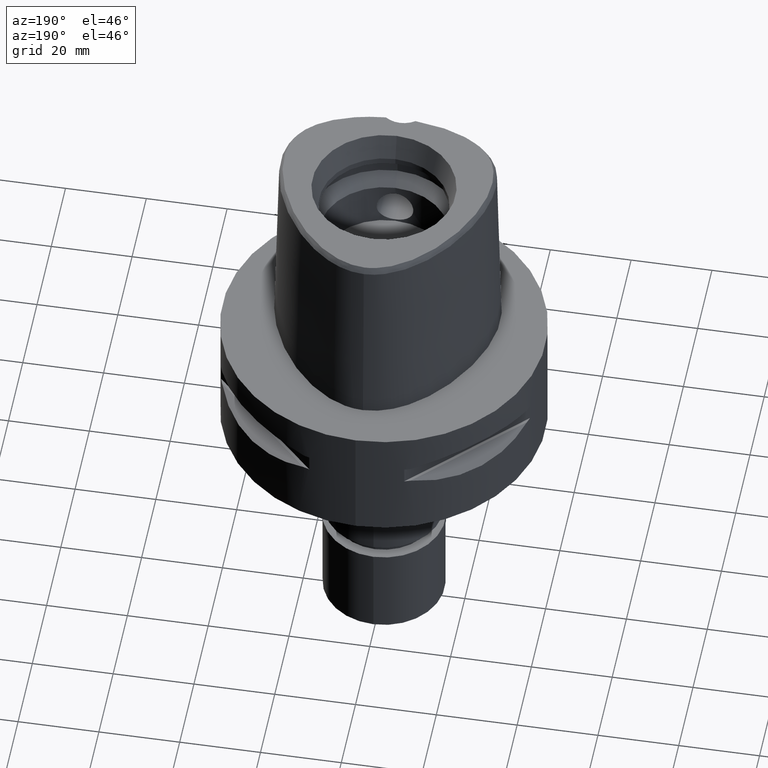
[diagram: clean part render]
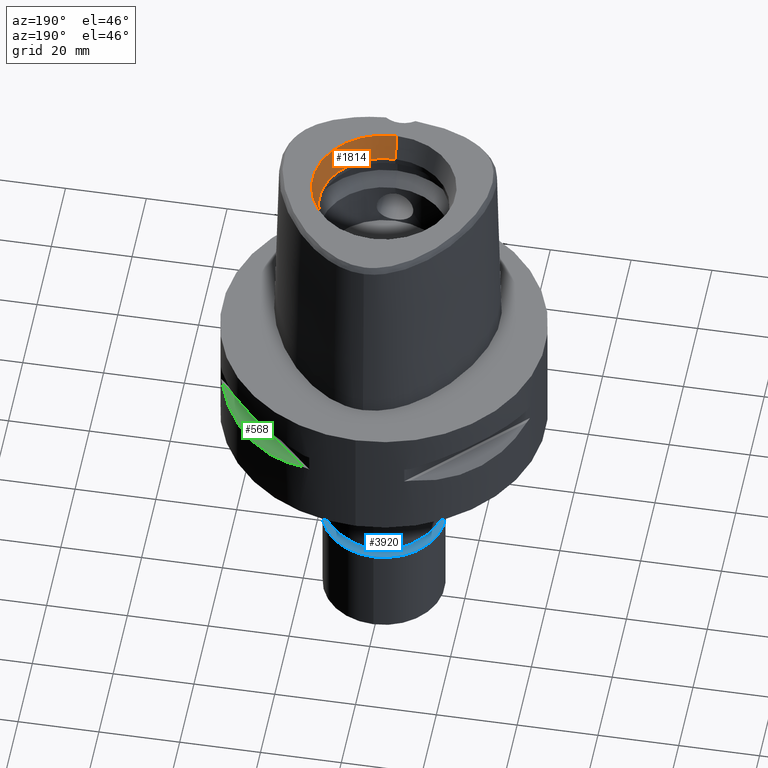
[diagram: same view with three faces highlighted in distinct colors, each labeled with its STEP entity id]
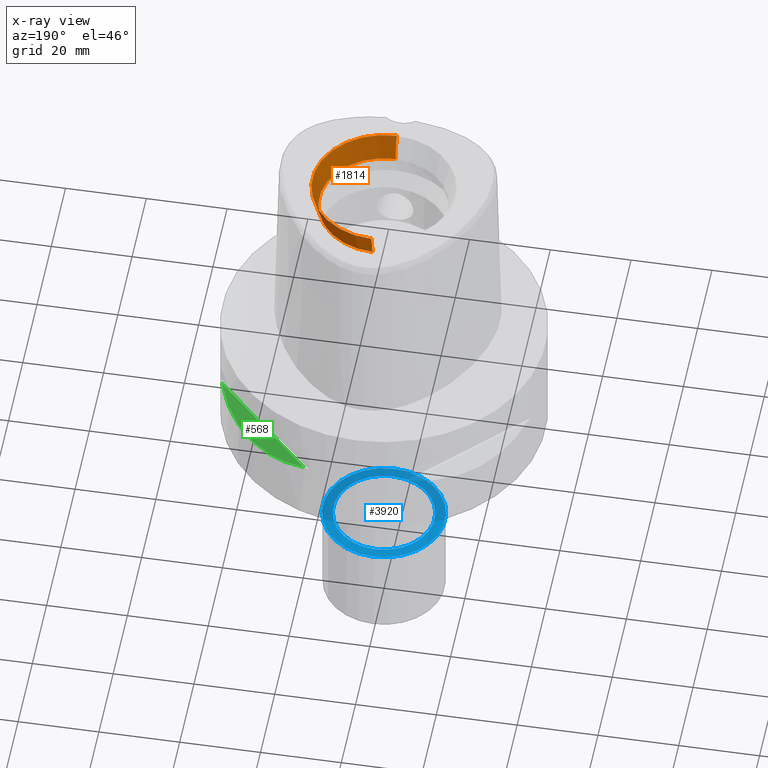
[diagram: x-ray of the same camera — body ghosted, the three highlighted faces saturated]
A machine part, auxiliary view with three faces highlighted in distinct colors.
The next image is the same camera in x-ray (body ghosted, the three faces saturated) — at least one of them is partly hidden behind the body in this view.
Their STEP definitions:

[orange] entity #1814 — the highlighted conical surface has half-angle 15 deg.
#455 = CIRCLE ( 'NONE', #4609, 17.71487483155999954 ) ;
#788 = CIRCLE ( 'NONE', #1198, 16.00000000000000000 ) ;
#854 = DIRECTION ( 'NONE',  ( 0.0000000000000000000, 0.0000000000000000000, 1.000000000000000000 ) ) ;
#870 = CARTESIAN_POINT ( 'NONE',  ( 0.0000000000000000000, 0.0000000000000000000, 41.60000000000000142 ) ) ;
#873 = EDGE_LOOP ( 'NONE', ( #4148, #3035, #1162, #4160 ) ) ;
#879 = CARTESIAN_POINT ( 'NONE',  ( 0.0000000000000000000, 0.0000000000000000000, 44.79999999999999716 ) ) ;
#911 = CARTESIAN_POINT ( 'NONE',  ( 0.0000000000000000000, 16.00000000000000000, 41.60000000000000142 ) ) ;
#1130 = CARTESIAN_POINT ( 'NONE',  ( 0.0000000000000000000, 0.0000000000000000000, 48.00000000000000000 ) ) ;
#1145 = VERTEX_POINT ( 'NONE', #1637 ) ;
#1162 = ORIENTED_EDGE ( 'NONE', *, *, #1213, .T. ) ;
#1198 = AXIS2_PLACEMENT_3D ( 'NONE', #870, #3451, #4229 ) ;
#1213 = EDGE_CURVE ( 'NONE', #2285, #1762, #2142, .T. ) ;
#1350 = CARTESIAN_POINT ( 'NONE',  ( 0.0000000000000000000, -16.00000000000000000, 41.60000000000000142 ) ) ;
#1487 = EDGE_CURVE ( 'NONE', #4542, #1145, #1645, .T. ) ;
#1637 = CARTESIAN_POINT ( 'NONE',  ( 0.0000000000000000000, 17.71487483155999954, 48.00000000000000000 ) ) ;
#1645 = LINE ( 'NONE', #911, #4912 ) ;
#1677 = VECTOR ( 'NONE', #3323, 1000.000000000000000 ) ;
#1762 = VERTEX_POINT ( 'NONE', #3582 ) ;
#1814 = ADVANCED_FACE ( 'NONE', ( #2824 ), #5000, .F. ) ;
#1852 = DIRECTION ( 'NONE',  ( 0.0000000000000000000, -1.000000000000000000, 0.0000000000000000000 ) ) ;
#1951 = DIRECTION ( 'NONE',  ( 0.0000000000000000000, 0.0000000000000000000, 1.000000000000000000 ) ) ;
#2088 = AXIS2_PLACEMENT_3D ( 'NONE', #879, #854, #4015 ) ;
#2142 = LINE ( 'NONE', #2942, #1677 ) ;
#2285 = VERTEX_POINT ( 'NONE', #1350 ) ;
#2411 = EDGE_CURVE ( 'NONE', #1762, #1145, #455, .T. ) ;
#2741 = EDGE_CURVE ( 'NONE', #2285, #4542, #788, .T. ) ;
#2824 = FACE_OUTER_BOUND ( 'NONE', #873, .T. ) ;
#2942 = CARTESIAN_POINT ( 'NONE',  ( 0.0000000000000000000, -16.00000000000000000, 41.60000000000000142 ) ) ;
#3035 = ORIENTED_EDGE ( 'NONE', *, *, #2741, .F. ) ;
#3235 = DIRECTION ( 'NONE',  ( 0.0000000000000000000, 0.2588190451025869088, 0.9659258262890505486 ) ) ;
#3323 = DIRECTION ( 'NONE',  ( 0.0000000000000000000, -0.2588190451025869088, 0.9659258262890505486 ) ) ;
#3451 = DIRECTION ( 'NONE',  ( 0.0000000000000000000, 0.0000000000000000000, 1.000000000000000000 ) ) ;
#3582 = CARTESIAN_POINT ( 'NONE',  ( 0.0000000000000000000, -17.71487483155999954, 48.00000000000000000 ) ) ;
#4015 = DIRECTION ( 'NONE',  ( 0.0000000000000000000, 1.000000000000000000, 0.0000000000000000000 ) ) ;
#4148 = ORIENTED_EDGE ( 'NONE', *, *, #1487, .F. ) ;
#4160 = ORIENTED_EDGE ( 'NONE', *, *, #2411, .T. ) ;
#4229 = DIRECTION ( 'NONE',  ( 0.0000000000000000000, -1.000000000000000000, 0.0000000000000000000 ) ) ;
#4520 = CARTESIAN_POINT ( 'NONE',  ( 0.0000000000000000000, 16.00000000000000000, 41.60000000000000142 ) ) ;
#4542 = VERTEX_POINT ( 'NONE', #4520 ) ;
#4609 = AXIS2_PLACEMENT_3D ( 'NONE', #1130, #1951, #1852 ) ;
#4912 = VECTOR ( 'NONE', #3235, 1000.000000000000000 ) ;
#5000 = CONICAL_SURFACE ( 'NONE', #2088, 16.85743741578000154, 0.2617993877991000029 ) ;

[blue] entity #3920 — the highlighted planar face has unit normal (0, 0, -1).
#62 = DIRECTION ( 'NONE',  ( 0.0000000000000000000, 0.0000000000000000000, -1.000000000000000000 ) ) ;
#82 = EDGE_LOOP ( 'NONE', ( #3171, #1449 ) ) ;
#153 = DIRECTION ( 'NONE',  ( 0.0000000000000000000, -1.000000000000000000, 0.0000000000000000000 ) ) ;
#235 = CARTESIAN_POINT ( 'NONE',  ( 0.0000000000000000000, -12.50000000000000000, 0.0000000000000000000 ) ) ;
#361 = AXIS2_PLACEMENT_3D ( 'NONE', #471, #2821, #1233 ) ;
#408 = CIRCLE ( 'NONE', #3188, 15.15000000000000036 ) ;
#471 = CARTESIAN_POINT ( 'NONE',  ( 0.0000000000000000000, 0.0000000000000000000, 0.0000000000000000000 ) ) ;
#498 = EDGE_CURVE ( 'NONE', #3656, #1291, #3944, .T. ) ;
#508 = EDGE_CURVE ( 'NONE', #1291, #3656, #4431, .T. ) ;
#511 = CARTESIAN_POINT ( 'NONE',  ( 0.0000000000000000000, 12.50000000000000000, 0.0000000000000000000 ) ) ;
#772 = DIRECTION ( 'NONE',  ( 0.0000000000000000000, -1.000000000000000000, 0.0000000000000000000 ) ) ;
#1233 = DIRECTION ( 'NONE',  ( 0.0000000000000000000, 1.000000000000000000, 0.0000000000000000000 ) ) ;
#1291 = VERTEX_POINT ( 'NONE', #235 ) ;
#1449 = ORIENTED_EDGE ( 'NONE', *, *, #3544, .F. ) ;
#1575 = AXIS2_PLACEMENT_3D ( 'NONE', #1957, #4231, #772 ) ;
#1957 = CARTESIAN_POINT ( 'NONE',  ( 0.0000000000000000000, 0.0000000000000000000, 0.0000000000000000000 ) ) ;
#2346 = PLANE ( 'NONE',  #1575 ) ;
#2394 = FACE_BOUND ( 'NONE', #3094, .T. ) ;
#2696 = FACE_OUTER_BOUND ( 'NONE', #82, .T. ) ;
#2793 = CARTESIAN_POINT ( 'NONE',  ( 0.0000000000000000000, 0.0000000000000000000, 0.0000000000000000000 ) ) ;
#2821 = DIRECTION ( 'NONE',  ( 0.0000000000000000000, 0.0000000000000000000, 1.000000000000000000 ) ) ;
#2929 = ORIENTED_EDGE ( 'NONE', *, *, #498, .F. ) ;
#3094 = EDGE_LOOP ( 'NONE', ( #2929, #3525 ) ) ;
#3171 = ORIENTED_EDGE ( 'NONE', *, *, #3666, .F. ) ;
#3188 = AXIS2_PLACEMENT_3D ( 'NONE', #3874, #5034, #4269 ) ;
#3264 = AXIS2_PLACEMENT_3D ( 'NONE', #3588, #62, #3539 ) ;
#3289 = AXIS2_PLACEMENT_3D ( 'NONE', #2793, #3651, #153 ) ;
#3469 = CARTESIAN_POINT ( 'NONE',  ( 0.0000000000000000000, -15.15000000000000036, 0.0000000000000000000 ) ) ;
#3525 = ORIENTED_EDGE ( 'NONE', *, *, #508, .F. ) ;
#3539 = DIRECTION ( 'NONE',  ( 0.0000000000000000000, 1.000000000000000000, 0.0000000000000000000 ) ) ;
#3544 = EDGE_CURVE ( 'NONE', #5022, #3595, #408, .T. ) ;
#3588 = CARTESIAN_POINT ( 'NONE',  ( 0.0000000000000000000, 0.0000000000000000000, 0.0000000000000000000 ) ) ;
#3595 = VERTEX_POINT ( 'NONE', #4986 ) ;
#3651 = DIRECTION ( 'NONE',  ( 0.0000000000000000000, 0.0000000000000000000, 1.000000000000000000 ) ) ;
#3656 = VERTEX_POINT ( 'NONE', #511 ) ;
#3666 = EDGE_CURVE ( 'NONE', #3595, #5022, #4478, .T. ) ;
#3874 = CARTESIAN_POINT ( 'NONE',  ( 0.0000000000000000000, 0.0000000000000000000, 0.0000000000000000000 ) ) ;
#3920 = ADVANCED_FACE ( 'NONE', ( #2696, #2394 ), #2346, .F. ) ;
#3944 = CIRCLE ( 'NONE', #361, 12.50000000000000000 ) ;
#4231 = DIRECTION ( 'NONE',  ( 0.0000000000000000000, 0.0000000000000000000, -1.000000000000000000 ) ) ;
#4269 = DIRECTION ( 'NONE',  ( 0.0000000000000000000, -1.000000000000000000, 0.0000000000000000000 ) ) ;
#4431 = CIRCLE ( 'NONE', #3289, 12.50000000000000000 ) ;
#4478 = CIRCLE ( 'NONE', #3264, 15.15000000000000036 ) ;
#4986 = CARTESIAN_POINT ( 'NONE',  ( 0.0000000000000000000, 15.15000000000000036, 0.0000000000000000000 ) ) ;
#5022 = VERTEX_POINT ( 'NONE', #3469 ) ;
#5034 = DIRECTION ( 'NONE',  ( 0.0000000000000000000, 0.0000000000000000000, -1.000000000000000000 ) ) ;

[green] entity #568 — the highlighted planar face has unit normal (-0.3536, -0.3536, -0.866).
#102 = CARTESIAN_POINT ( 'NONE',  ( 37.23659447744844897, 14.69039122918117357, -14.43521939500984885 ) ) ;
#129 = CARTESIAN_POINT ( 'NONE',  ( 25.62819065486898396, 30.77249687754148866, -16.26160051743016055 ) ) ;
#134 = CARTESIAN_POINT ( 'NONE',  ( 13.23717311056000057, 37.74622163926999718, -14.05000000000000071 ) ) ;
#150 = CARTESIAN_POINT ( 'NONE',  ( 27.25214773984120598, 29.31642813391417590, -16.33014064577303515 ) ) ;
#175 = CARTESIAN_POINT ( 'NONE',  ( 23.60097336453497618, 32.30995221951452834, -16.06165603927751917 ) ) ;
#201 = CARTESIAN_POINT ( 'NONE',  ( 13.23717311056000057, 37.74622163926999718, -14.05000000000000071 ) ) ;
#497 = B_SPLINE_CURVE_WITH_KNOTS ( 'NONE', 3,
 ( #4365, #102, #1746, #1305, #4783, #3224, #4837, #2838, #994, #2515, #3673, #1772, #3295, #150, #129, #175, #1722, #1675, #2539, #599, #2888, #3699, #4463, #2164, #550, #201 ),
 .UNSPECIFIED., .F., .F.,
 ( 4, 1, 1, 1, 1, 1, 1, 2, 2, 2, 1, 1, 1, 1, 1, 1, 2, 2, 4 ),
 ( 0.0000000000000000000, 0.1249999999999938660, 0.1874999999999906741, 0.2187499999999889255, 0.2343749999999879541, 0.2421874999999872879, 0.2460937499999869549, 0.2480468749999869271, 0.2499999999999869271, 0.4999999999999968914, 0.6250000000000018874, 0.6875000000000044409, 0.7187500000000057732, 0.7343750000000064393, 0.7421875000000067724, 0.7460937500000065503, 0.7480468750000062172, 0.7500000000000058842, 1.000000000000000000 ),
 .UNSPECIFIED. ) ;
#527 = DIRECTION ( 'NONE',  ( 0.0000000000000000000, -0.9258200997725358761, 0.3779644730092654448 ) ) ;
#550 = CARTESIAN_POINT ( 'NONE',  ( 16.14402792110260521, 36.72682052670324993, -14.82054974552761095 ) ) ;
#568 = ADVANCED_FACE ( 'NONE', ( #1679 ), #2011, .F. ) ;
#599 = CARTESIAN_POINT ( 'NONE',  ( 21.62017158009700069, 33.65365962422837498, -15.80156334789098160 ) ) ;
#994 = CARTESIAN_POINT ( 'NONE',  ( 33.79139713908593023, 21.40429668490282467, -15.76966389594722528 ) ) ;
#1305 = CARTESIAN_POINT ( 'NONE',  ( 35.11589783530617126, 19.18269457493275354, -15.40342377741110091 ) ) ;
#1675 = CARTESIAN_POINT ( 'NONE',  ( 22.02254759438460141, 33.39247868354773630, -15.85920599531294783 ) ) ;
#1679 = FACE_OUTER_BOUND ( 'NONE', #2268, .T. ) ;
#1722 = CARTESIAN_POINT ( 'NONE',  ( 22.55421454656803704, 33.03835700910301654, -15.93168855142971374 ) ) ;
#1746 = CARTESIAN_POINT ( 'NONE',  ( 36.35358138589326416, 16.81132763100200123, -14.94059947015123058 ) ) ;
#1752 = AXIS2_PLACEMENT_3D ( 'NONE', #4718, #4367, #527 ) ;
#1772 = CARTESIAN_POINT ( 'NONE',  ( 32.16767032371209467, 23.95303639237203797, -16.14729882780224202 ) ) ;
#1842 = VERTEX_POINT ( 'NONE', #134 ) ;
#1871 = ORIENTED_EDGE ( 'NONE', *, *, #4009, .T. ) ;
#2011 = PLANE ( 'NONE',  #1752 ) ;
#2164 = CARTESIAN_POINT ( 'NONE',  ( 18.89342208871625317, 35.39137327286631063, -15.39779115588368619 ) ) ;
#2268 = EDGE_LOOP ( 'NONE', ( #3860, #1871 ) ) ;
#2321 = CARTESIAN_POINT ( 'NONE',  ( 37.74622163926999718, 13.23717311056000057, -14.05000000000000071 ) ) ;
#2515 = CARTESIAN_POINT ( 'NONE',  ( 33.76566745675005166, 21.44484052678287256, -15.77571175125579828 ) ) ;
#2539 = CARTESIAN_POINT ( 'NONE',  ( 21.75464223249287699, 33.56701934068274795, -15.82109001420633732 ) ) ;
#2671 = CARTESIAN_POINT ( 'NONE',  ( 37.74622163926999718, 13.23717311056000057, -14.05000000000000071 ) ) ;
#2838 = CARTESIAN_POINT ( 'NONE',  ( 33.82993376593505275, 21.34345216682098112, -15.76055673748761166 ) ) ;
#2888 = CARTESIAN_POINT ( 'NONE',  ( 21.56243030661663695, 33.69065616467183588, -15.79309434609252705 ) ) ;
#3045 = LINE ( 'NONE', #2671, #4316 ) ;
#3224 = CARTESIAN_POINT ( 'NONE',  ( 34.09685321779860345, 20.91613153242115075, -15.69507322892878953 ) ) ;
#3295 = CARTESIAN_POINT ( 'NONE',  ( 30.34851826270024944, 26.21995747455423853, -16.33009976521772799 ) ) ;
#3450 = DIRECTION ( 'NONE',  ( -0.7071067811865474617, 0.7071067811865474617, 0.0000000000000000000 ) ) ;
#3673 = CARTESIAN_POINT ( 'NONE',  ( 33.75216276490046852, 21.46607685731544990, -15.77886817953061005 ) ) ;
#3699 = CARTESIAN_POINT ( 'NONE',  ( 21.52391145898924663, 33.71529052282357952, -15.78742602700012831 ) ) ;
#3860 = ORIENTED_EDGE ( 'NONE', *, *, #4703, .F. ) ;
#3927 = VERTEX_POINT ( 'NONE', #2321 ) ;
#4009 = EDGE_CURVE ( 'NONE', #3927, #1842, #497, .T. ) ;
#4316 = VECTOR ( 'NONE', #3450, 1000.000000000000114 ) ;
#4365 = CARTESIAN_POINT ( 'NONE',  ( 37.74622163926999718, 13.23717311056000057, -14.05000000000000071 ) ) ;
#4367 = DIRECTION ( 'NONE',  ( -0.3535533905933054277, -0.3535533905933049836, -0.8660254037844130615 ) ) ;
#4463 = CARTESIAN_POINT ( 'NONE',  ( 21.50560509406274434, 33.72697758561020720, -15.78472370821746118 ) ) ;
#4703 = EDGE_CURVE ( 'NONE', #3927, #1842, #3045, .T. ) ;
#4718 = CARTESIAN_POINT ( 'NONE',  ( 7.814027845251999338, 43.16936690458000214, -14.05000000000000071 ) ) ;
#4783 = CARTESIAN_POINT ( 'NONE',  ( 34.44518065740276569, 20.34261333234974245, -15.60313948593977074 ) ) ;
#4837 = CARTESIAN_POINT ( 'NONE',  ( 33.91944728533341191, 21.20128033779756294, -15.73905907260447101 ) ) ;